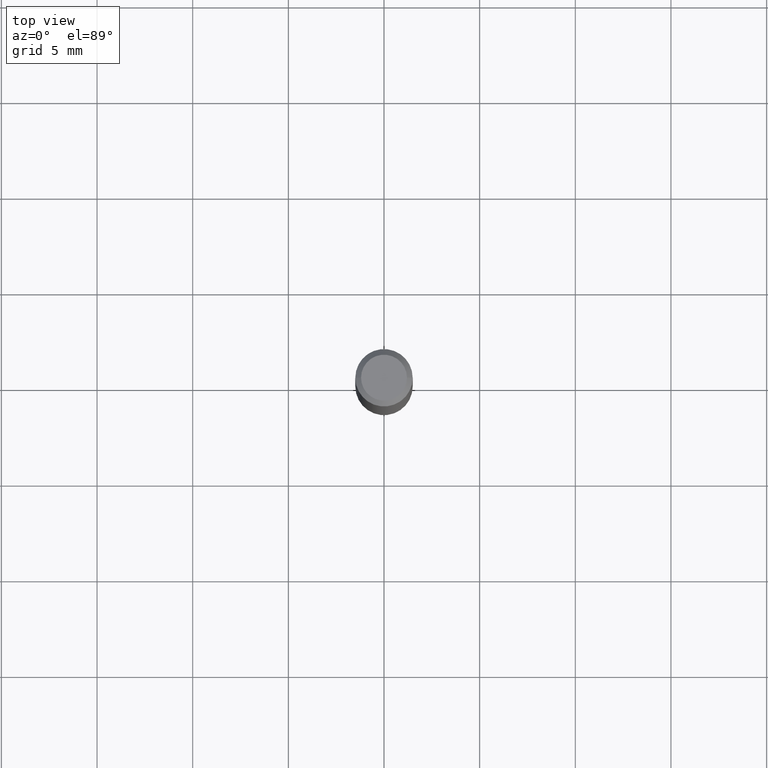
[diagram: clean part render]
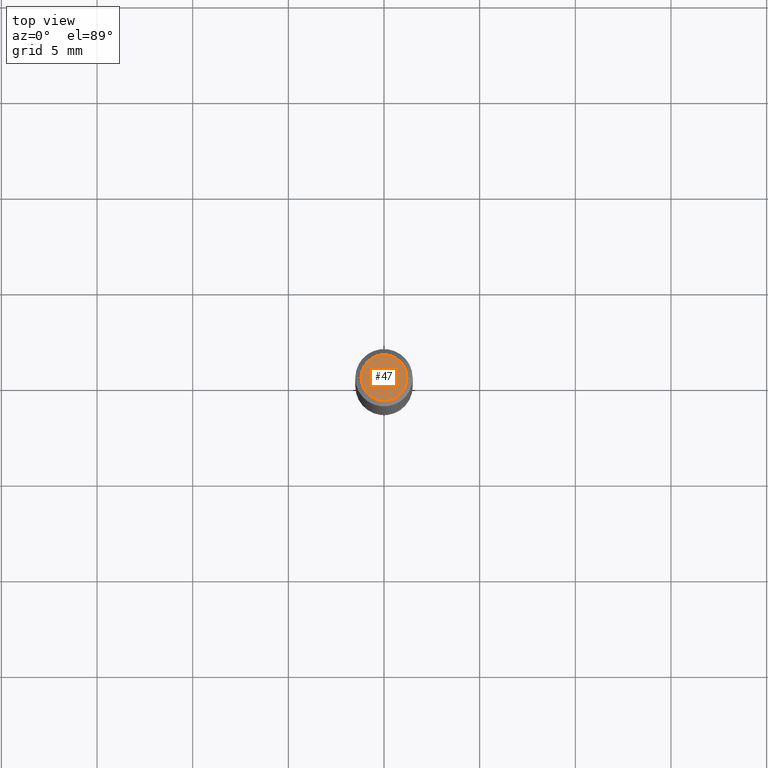
[diagram: same view with one face highlighted and labeled with its STEP entity id]
A machine part, top view. The second image highlights one B-rep face of the part: STEP entity #47.
In plain terms, the highlighted planar face has unit normal (0, -0, -1).
Its self-contained STEP definition (entity closure, byte-faithful):
#30 = DIRECTION ( 'NONE',  ( -1.000000000000000000, 6.982962677686265922E-15, -4.876176775795935793E-29 ) ) ;
#47 = ADVANCED_FACE ( 'NONE', ( #314 ), #318, .F. ) ;
#55 = ORIENTED_EDGE ( 'NONE', *, *, #162, .T. ) ;
#81 = EDGE_CURVE ( 'NONE', #391, #241, #474, .T. ) ;
#91 = DIRECTION ( 'NONE',  ( -2.445468806185136597E-29, 3.491481338843145583E-15, 1.000000000000000000 ) ) ;
#132 = DIRECTION ( 'NONE',  ( -2.445468806185136597E-29, 3.491481338843145583E-15, 1.000000000000000000 ) ) ;
#162 = EDGE_CURVE ( 'NONE', #241, #391, #170, .T. ) ;
#169 = DIRECTION ( 'NONE',  ( 2.438088387897960049E-29, -3.491481338843145188E-15, -1.000000000000000000 ) ) ;
#170 = CIRCLE ( 'NONE', #387, 0.04724000000000000421 ) ;
#178 = ORIENTED_EDGE ( 'NONE', *, *, #81, .T. ) ;
#224 = AXIS2_PLACEMENT_3D ( 'NONE', #279, #169, #30 ) ;
#232 = DIRECTION ( 'NONE',  ( 1.000000000000000000, -6.982962677686266711E-15, 4.876185090822587894E-29 ) ) ;
#241 = VERTEX_POINT ( 'NONE', #262 ) ;
#262 = CARTESIAN_POINT ( 'NONE',  ( -0.04724000000000000421, 3.504923541997677355E-16, -3.380025165670481712E-19 ) ) ;
#266 = CARTESIAN_POINT ( 'NONE',  ( 8.265746106709734507E-48, -1.180129479067563789E-33, -3.380025165646692144E-19 ) ) ;
#269 = EDGE_LOOP ( 'NONE', ( #55, #178 ) ) ;
#279 = CARTESIAN_POINT ( 'NONE',  ( 4.132873053354867254E-48, -5.900647395337818946E-34, -1.690012582823346072E-19 ) ) ;
#303 = DIRECTION ( 'NONE',  ( 1.000000000000000000, -6.982962677686266711E-15, 4.876185090822587894E-29 ) ) ;
#314 = FACE_OUTER_BOUND ( 'NONE', #269, .T. ) ;
#318 = PLANE ( 'NONE',  #224 ) ;
#375 = CARTESIAN_POINT ( 'NONE',  ( 0.04724000000000000421, -3.852183633974369345E-16, -3.380025165621689721E-19 ) ) ;
#387 = AXIS2_PLACEMENT_3D ( 'NONE', #266, #91, #232 ) ;
#391 = VERTEX_POINT ( 'NONE', #375 ) ;
#395 = CARTESIAN_POINT ( 'NONE',  ( 8.265746106709734507E-48, -1.180129479067563789E-33, -3.380025165646692144E-19 ) ) ;
#433 = AXIS2_PLACEMENT_3D ( 'NONE', #395, #132, #303 ) ;
#474 = CIRCLE ( 'NONE', #433, 0.04724000000000000421 ) ;